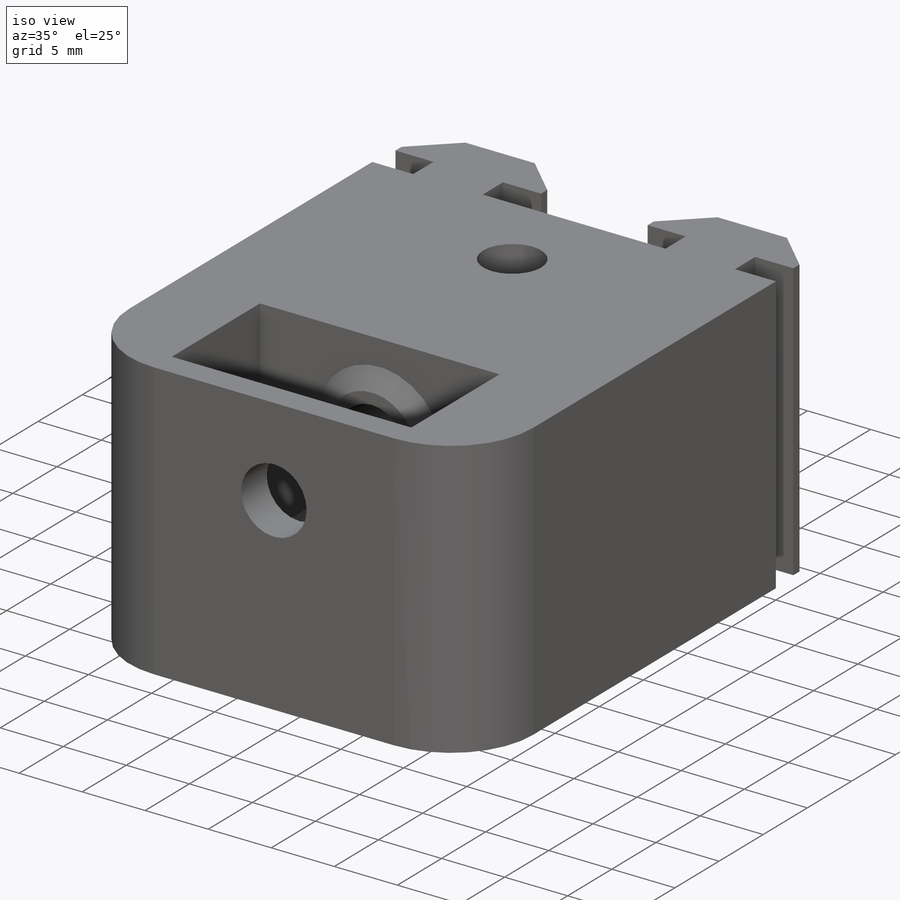
[diagram: iso view]
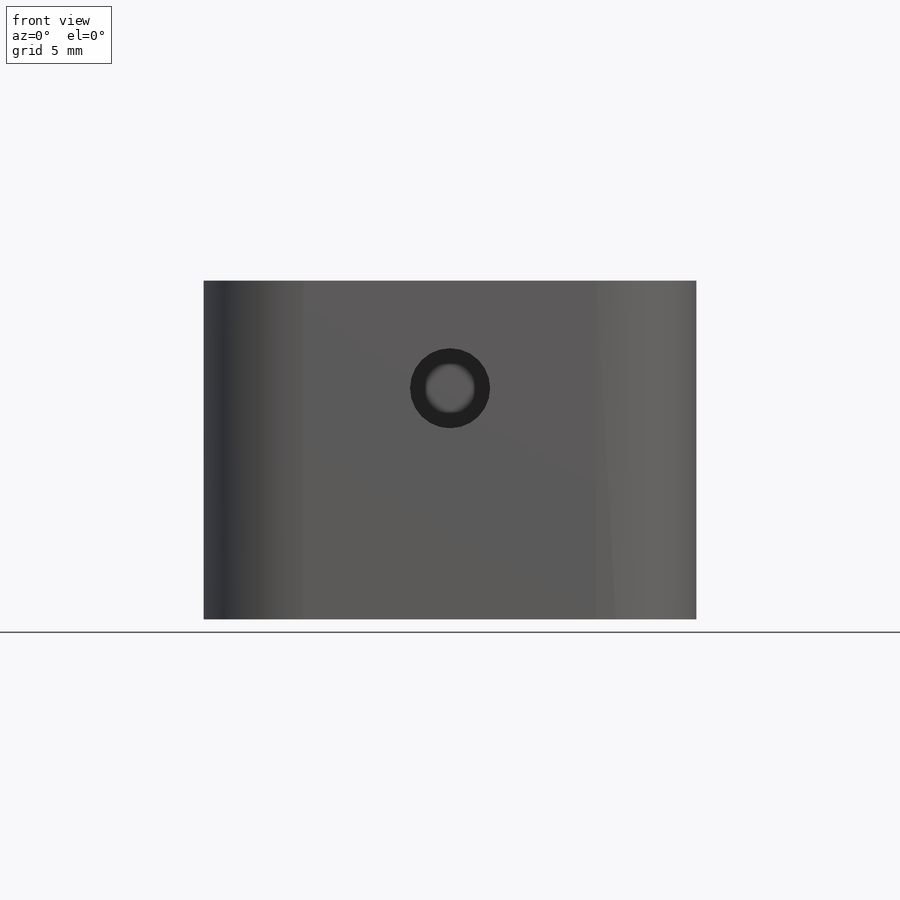
[diagram: front view]
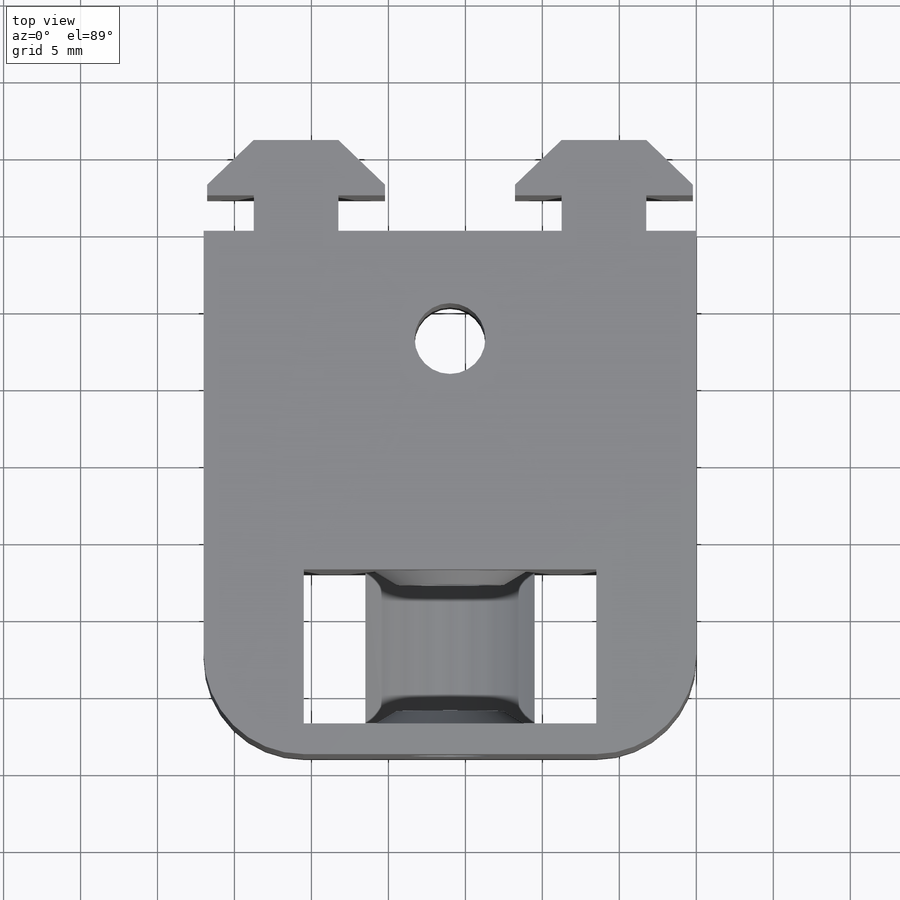
[diagram: top view]
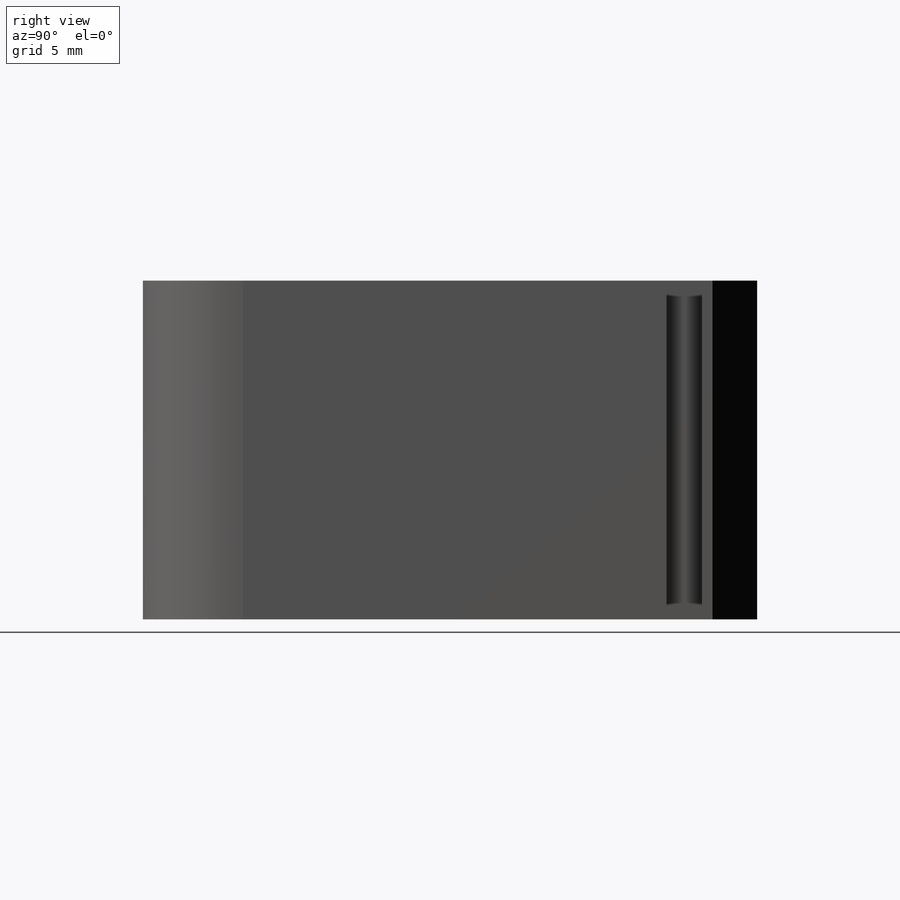
[diagram: right view]
SOLIDWORKS PART (.sldprt)
format: sldprt  version: not decoded by parser v0  size: 263,680 bytes
history: native  units: mm
features: sketch x4, extrude x2, material x1, plane x1, revolve x1, cut_extrude x1 (+13 scaffold rows collapsed)
feature tree (23):
  scaffold x13  (default folders/planes/origin — collapsed)
  material  "ABS"
  sketch  "Sketch1"  dims[c1.D2=14.0mm c1.D3=14.0mm c1.D12=~5.387971mm c1.D14=4.6mm c1.D15=13.0mm c1.D1=20.0mm c2.D3=19.0mm c2.D4=32.0mm c2.D5=2.3mm c2.D6=5.9mm c2.D7=11.55mm c2.D8=5.9mm c3.D8=~0.389478deg c4.D8=20.0mm c4.D9=0.7mm c4.D10=5.5mm c4.D3=19.0mm c4.D11=10.0mm c4.D12=14.0mm c4.D13=7.0mm c4.D15=2.0mm c4.D2=19.0mm c5.D3=2.0mm c5.D12=22.0mm]
  extrude  "Boss-Extrude1"  Depth=22mm
  sketch  "Sketch2"  dims[D2=17.0mm D1=7.0mm D3=11.0mm]
  extrude  "Boss-Extrude2"  [1 undecoded]
  plane  "Plane1"
  sketch  "Sketch4"  dims[D1=7.0mm D2=5.0mm D3=3.5mm D4=0.9mm]
  revolve  "Revolve1"  Angle=360deg
  sketch  "Sketch5"  dims[D2=5.2mm D1=7.0mm]
  cut_extrude  "Cut-Extrude1"  Depth=17.5mm
decode coverage: 7 of 8 modeling features carry decoded parameters
note: ~ marks probable driven/reference dimensions
note: 1 parameter value undecoded
note: suppression state not decoded; provenance and decode notes live in map.json
